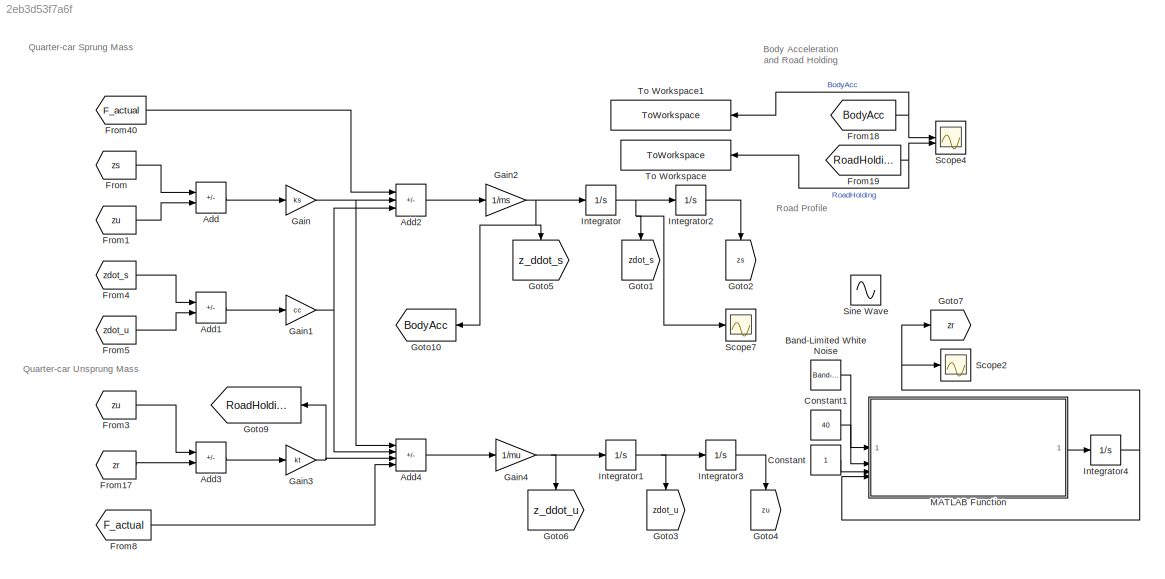
MODEL slx_2eb3d53f7a6f
KIND model
CONFIG AbsTol = auto
CONFIG EnableMultiTasking = off
CONFIG FixedStep = 1e-6
CONFIG MaxStep = 1e-3
CONFIG MinStep = 1e-8
CONFIG RelTol = 1e-4
CONFIG SampleTimeConstraint = Unconstrained
CONFIG SolverName = FixedStepAuto
CONFIG StartTime = 0.0
CONFIG StopTime = 1.5
BLOCK [Sum] Add
  IconShape = rectangular
  Inputs = +-
BLOCK [Sum] Add1
  IconShape = rectangular
  Inputs = +-
BLOCK [Sum] Add2
  IconShape = rectangular
  Inputs = +--
BLOCK [Sum] Add3
  IconShape = rectangular
  Inputs = +-
BLOCK [Sum] Add4
  IconShape = rectangular
  Inputs = ++--
BLOCK [Reference] Band-Limited White Noise  REF=simulink/Sources/Band-Limited
White Noise
  SourceBlock = simulink/Sources/Band-Limited\nWhite Noise
  SourceType = Band-Limited White Noise.
BLOCK [Constant] Constant
BLOCK [Constant] Constant1
  Value = 40
BLOCK [From] From
  GotoTag = zs
BLOCK [From] From1
  GotoTag = zu
BLOCK [From] From17
  GotoTag = zr
BLOCK [From] From18
  GotoTag = BodyAcc
BLOCK [From] From19
  GotoTag = RoadHolding
BLOCK [From] From3
  GotoTag = zu
BLOCK [From] From4
  GotoTag = zdot_s
BLOCK [From] From40
  Commented = on
  GotoTag = F_actual
BLOCK [From] From5
  GotoTag = zdot_u
BLOCK [From] From8
  Commented = on
  GotoTag = F_actual
BLOCK [Gain] Gain
  Gain = ks
BLOCK [Gain] Gain1
  Gain = cc
BLOCK [Gain] Gain2
  Gain = 1/ms
BLOCK [Gain] Gain3
  Gain = kt
BLOCK [Gain] Gain4
  Gain = 1/mu
BLOCK [Goto] Goto1
  GotoTag = zdot_s
  NameLocation = left
BLOCK [Goto] Goto10
  GotoTag = BodyAcc
  NameLocation = top
BLOCK [Goto] Goto2
  GotoTag = zs
  NameLocation = left
BLOCK [Goto] Goto3
  GotoTag = zdot_u
  NameLocation = left
BLOCK [Goto] Goto4
  GotoTag = zu
  NameLocation = left
BLOCK [Goto] Goto5
  GotoTag = z_ddot_s
  NameLocation = left
BLOCK [Goto] Goto6
  GotoTag = z_ddot_u
  NameLocation = left
BLOCK [Goto] Goto7
  GotoTag = zr
BLOCK [Goto] Goto9
  GotoTag = RoadHolding
  NameLocation = top
BLOCK [Integrator] Integrator
BLOCK [Integrator] Integrator1
BLOCK [Integrator] Integrator2
BLOCK [Integrator] Integrator3
BLOCK [Integrator] Integrator4
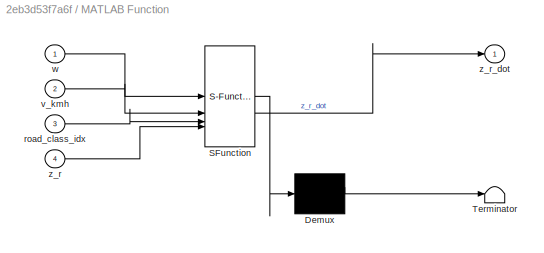
BLOCK [SubSystem] MATLAB Function
  ErrorFcn = Stateflow.Translate.translate
  PermitHierarchicalResolution = ExplicitOnly
  SFBlockType = MATLAB Function
  TreatAsAtomicUnit = on
BLOCK [Demux] MATLAB Function/ Demux 
  Outputs = 1
BLOCK [S-Function] MATLAB Function/ SFunction 
  EnableBusSupport = off
  FunctionName = sf_sfun
  PortCounts = [4 2]
  SFcnIsStateOwnerBlock = off
  SFunctionDeploymentMode = off
  Tag = Stateflow S-Function 2
BLOCK [Terminator] MATLAB Function/ Terminator 
BLOCK [Inport] MATLAB Function/road_class_idx
  Port = 3
BLOCK [Inport] MATLAB Function/v_kmh
  Port = 2
BLOCK [Inport] MATLAB Function/w
BLOCK [Inport] MATLAB Function/z_r
  Port = 4
BLOCK [Outport] MATLAB Function/z_r_dot
BLOCK [Scope] Scope2
  ActiveDisplayYMaximum = 0.015995642543704076
  ActiveDisplayYMinimum = -0.0076345988746295539
  DataLoggingVariableName = ScopeData1
  Floating = off
  GraphicalSettings = {"Style":{"BackgroundColor":[0.12941176470588237,0.12941176470588237,0.12941176470588237],"AxesColor":[0.07058823529411765,0.07058823529411765,0.07058823529411765],"LabelsColor":[0.8509803921568627,0.8509803921568627,0.8509803921568627],"PreserveColors":false,"Visible":[true],"LineStyle":["-"],"LineWidth":[1.5],"BarWidth":[0.9],"LineColor":["auto"],"LineFaceAlpha":[1],"LineEdgeAlpha":[1],"Marker":...<+2014ch>
  MultipleDisplayCache = [{"MaxYLimMag":0.015995642543704076,"MaxYLimReal":0.015995642543704076,"MinYLimMag":0,"MinYLimReal":-0.0076345988746295539,"PlotAsMagnitudePhase":false,"ShowGrid":true,"ShowLegend":false,"Title":"%<SignalLabel>","YLabel":""}]
  NumInputPorts = 1
  ScopeFrameLocation = window
  Visible = on
  WasSavedAsWebScope = on
  WindowPosition = [440.000000,240.000000,560.000000,420.000000,]
BLOCK [Scope] Scope4
  ActiveDisplayString = 2
  ActiveDisplayYMaximum = 1443.7691557161784
  ActiveDisplayYMinimum = -1319.7407662714395
  DataLoggingVariableName = ScopeData5
  Floating = off
  GraphicalSettings = {"Style":{"BackgroundColor":[1,1,1],"AxesColor":[1,1,1],"LabelsColor":[0,0,0],"PreserveColors":false,"Visible":[true,true],"LineStyle":["-","-"],"LineWidth":[3,3],"BarWidth":[0.9,0.9],"LineColor":[[0.06666666666666667,0.44313725490196076,0.7450980392156863],[1,0,0]],"LineFaceAlpha":[1,1],"LineEdgeAlpha":[1,1],"Marker":["none","none"],"FontSize":8.5,"LineTrueColor":[[0.06666666666666667,0.443137254...<+2304ch>
  LayoutDimensionsString = [2, 1]
  MultipleDisplayCache = [{"MaxYLimMag":8.12036752723419,"MaxYLimReal":8.12036752723419,"MinYLimMag":0,"MinYLimReal":-7.62857759938511,"PlotAsMagnitudePhase":false,"ShowGrid":true,"ShowLegend":true,"Title":"%<SignalLabel>","YLabel":""},{"MaxYLimMag":1443.7691557161784,"MaxYLimReal":1443.7691557161784,"MinYLimMag":0,"MinYLimReal":-1319.7407662714395,"PlotAsMagnitudePhase":false,"ShowGrid":true,"ShowLegend":true,"Title":"%<...<+27ch>
  NumInputPorts = 2
  ScopeFrameLocation = window
  ShowLegend = on
  Visible = on
  WasSavedAsWebScope = on
  WindowPosition = [1.000000,1.000000,1440.000000,847.000000,]
BLOCK [Scope] Scope7
  ActiveDisplayYMaximum = 0.12589916007838611
  ActiveDisplayYMinimum = -0.076226191577344518
  DataLoggingVariableName = ScopeData7
  Floating = off
  GraphicalSettings = {"Style":{"BackgroundColor":[0.12941176470588237,0.12941176470588237,0.12941176470588237],"AxesColor":[0.07058823529411765,0.07058823529411765,0.07058823529411765],"LabelsColor":[0.8509803921568627,0.8509803921568627,0.8509803921568627],"PreserveColors":false,"Visible":[true],"LineStyle":["-"],"LineWidth":[1.5],"BarWidth":[0.9],"LineColor":["auto"],"LineFaceAlpha":[1],"LineEdgeAlpha":[1],"Marker":...<+1998ch>
  MultipleDisplayCache = [{"MaxYLimMag":0.12589916007838611,"MaxYLimReal":0.12589916007838611,"MinYLimMag":0,"MinYLimReal":-0.076226191577344518,"PlotAsMagnitudePhase":false,"ShowGrid":true,"ShowLegend":false,"Title":"%<SignalLabel>","YLabel":""}]
  NumInputPorts = 1
  ScopeFrameLocation = window
  Visible = on
  WasSavedAsWebScope = on
  WindowPosition = [551.000000,152.000000,560.000000,420.000000,]
BLOCK [Sin] Sine Wave
  Amplitude = 0.03
  Frequency = 2*pi*1.3
  SampleTime = 0
BLOCK [ToWorkspace] To Workspace
  FixptAsFi = on
  MaxDataPoints = inf
  NameLocation = top
  SampleTime = -1
  SaveFormat = Structure With Time
  VariableName = RoadHolding
BLOCK [ToWorkspace] To Workspace1
  FixptAsFi = on
  MaxDataPoints = inf
  NameLocation = top
  SampleTime = -1
  SaveFormat = Structure With Time
  VariableName = BodyAcceleration
ANNOTATION (root): Body Acceleration and Road Holding
ANNOTATION (root): Quarter-car Sprung Mass
ANNOTATION (root): Quarter-car Unsprung Mass
ANNOTATION (root): Road Profile
LINE Add1:1 -> Gain1:1
LINE Add2:1 -> Gain2:1
LINE Add3:1 -> Gain3:1
LINE Add4:1 -> Gain4:1
LINE Add:1 -> Gain:1
LINE Band-Limited White Noise:1 -> MATLAB Function:1
LINE Constant1:1 -> MATLAB Function:2
LINE Constant:1 -> MATLAB Function:3
LINE From17:1 -> Add3:2
NET From18:1 -> Scope4:1, To Workspace1:1
NET From19:1 -> Scope4:2, To Workspace:1
LINE From1:1 -> Add:2
LINE From3:1 -> Add3:1
LINE From40:1 -> Add2:1
LINE From4:1 -> Add1:1
LINE From5:1 -> Add1:2
LINE From8:1 -> Add4:4
LINE From:1 -> Add:1
NET Gain1:1 -> Add2:3, Add4:2
NET Gain2:1 -> Goto10:1, Goto5:1, Integrator:1
NET Gain3:1 -> Add4:3, Goto9:1
NET Gain4:1 -> Goto6:1, Integrator1:1
NET Gain:1 -> Add2:2, Add4:1
NET Integrator1:1 -> Goto3:1, Integrator3:1
LINE Integrator2:1 -> Goto2:1
LINE Integrator3:1 -> Goto4:1
NET Integrator4:1 -> Goto7:1, MATLAB Function:4, Scope2:1
NET Integrator:1 -> Goto1:1, Integrator2:1, Scope7:1
LINE MATLAB Function:1 -> Integrator4:1
note: NET lines group one-source signal fan-out (src -> all destinations, sorted); 1:1 wires keep LINE
CHART MATLAB Function states=1 transitions=1
  STATE_LABEL 'eML_blk_kernel()'
  STATE_LABEL 'SCRIPT:\nfunction z_r_dot = iso_road_filter(w, v_kmh, road_class_idx, z_r)\n    % Inputs:\n    %   w              - White noise input signal\n    %   v_kmh          - Vehicle speed in km/h from workspace\n    %   road_class_idx - 1 for Class B, 2 for Class D\n    %   z_r            - Current road displacement (feedback loop)\n    \n    % Constants\n    n_0 = 0.1;   % Reference spatial frequency (cycles/m)\n...<+525ch>'
CHART  states=0 transitions=0
